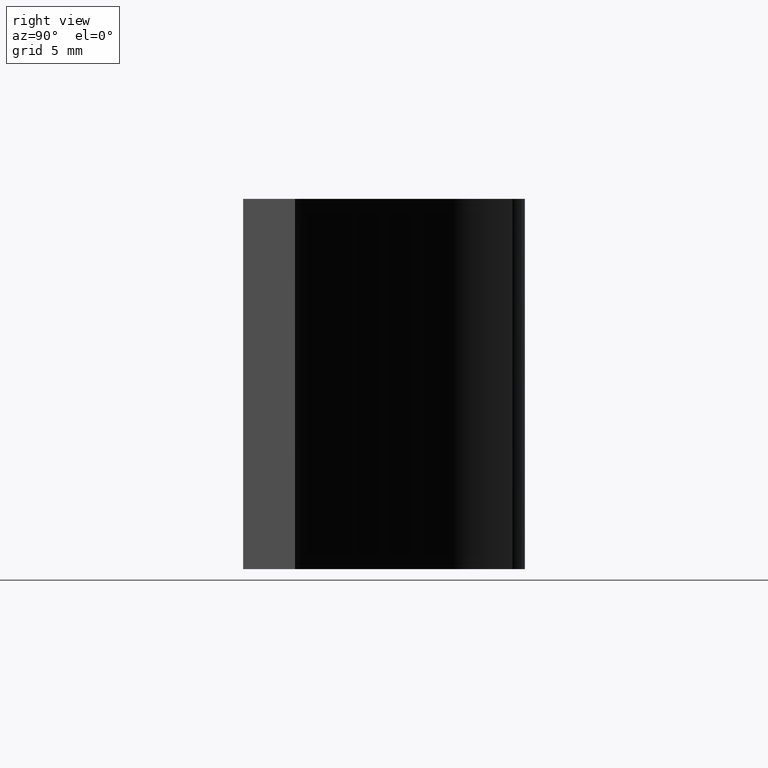
[diagram: clean part render]
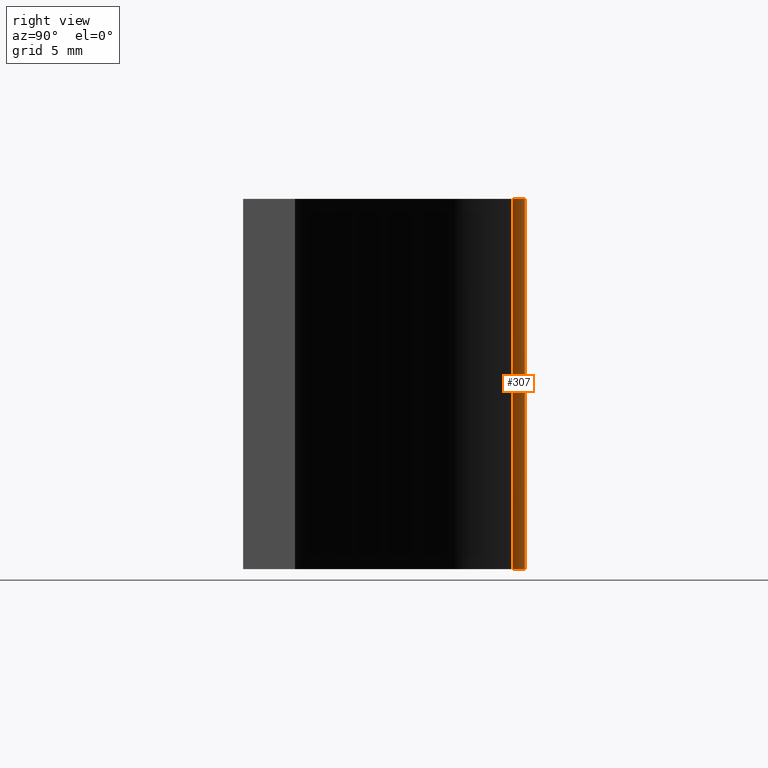
[diagram: same view with one face highlighted and labeled with its STEP entity id]
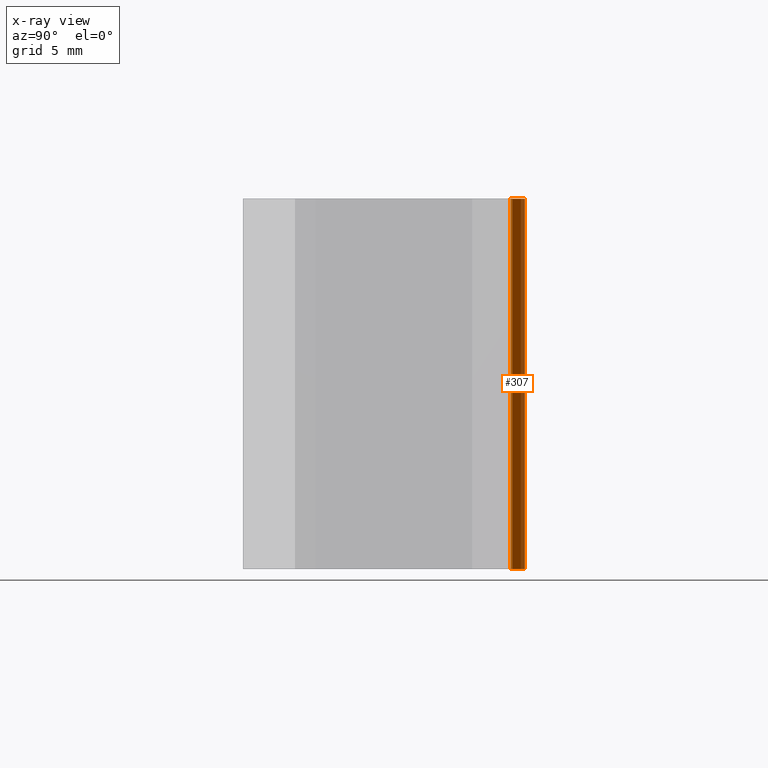
[diagram: x-ray of the same camera — body ghosted, the highlighted face saturated]
A machine part, right view. The second image highlights one B-rep face of the part: STEP entity #307.
The next image is the same camera in x-ray: the body ghosted, the highlighted face saturated — about 14% of this face is hidden behind the body in this view.
In plain terms, the highlighted cylindrical surface (partial cylindrical patch) has radius 5 mm, axis along (0, 0, 1).
Its self-contained STEP definition (entity closure, byte-faithful):
#15=CYLINDRICAL_SURFACE('',#350,5.);
#30=FACE_OUTER_BOUND('',#46,.T.);
#46=EDGE_LOOP('',(#253,#254,#255,#256));
#52=CIRCLE('',#337,5.);
#55=CIRCLE('',#351,5.);
#87=LINE('',#510,#123);
#88=LINE('',#514,#124);
#123=VECTOR('',#419,10.);
#124=VECTOR('',#424,10.);
#141=VERTEX_POINT('',#464);
#142=VERTEX_POINT('',#466);
#153=VERTEX_POINT('',#508);
#154=VERTEX_POINT('',#512);
#169=EDGE_CURVE('',#142,#141,#52,.T.);
#191=EDGE_CURVE('',#153,#141,#87,.T.);
#192=EDGE_CURVE('',#153,#154,#55,.T.);
#193=EDGE_CURVE('',#154,#142,#88,.T.);
#253=ORIENTED_EDGE('',*,*,#192,.T.);
#254=ORIENTED_EDGE('',*,*,#193,.T.);
#255=ORIENTED_EDGE('',*,*,#169,.T.);
#256=ORIENTED_EDGE('',*,*,#191,.F.);
#307=ADVANCED_FACE('',(#30),#15,.T.);
#337=AXIS2_PLACEMENT_3D('',#467,#374,#375);
#350=AXIS2_PLACEMENT_3D('',#511,#420,#421);
#351=AXIS2_PLACEMENT_3D('',#513,#422,#423);
#374=DIRECTION('center_axis',(0.,0.,1.));
#375=DIRECTION('ref_axis',(-0.562151423304266,-0.827034326540917,0.));
#419=DIRECTION('',(0.,0.,-1.));
#420=DIRECTION('center_axis',(0.,0.,1.));
#421=DIRECTION('ref_axis',(-0.562151423304266,-0.827034326540917,0.));
#422=DIRECTION('center_axis',(0.,0.,-1.));
#423=DIRECTION('ref_axis',(-0.562151423304266,-0.827034326540917,0.));
#424=DIRECTION('',(0.,0.,-1.));
#464=CARTESIAN_POINT('',(-2.98296810637382,17.0627174428754,-12.5));
#466=CARTESIAN_POINT('',(2.81075711652133,17.1851716327046,-12.5));
#467=CARTESIAN_POINT('Origin',(0.,13.05,-12.5));
#508=CARTESIAN_POINT('',(-2.98296810637382,17.0627174428754,12.5));
#510=CARTESIAN_POINT('',(-2.98296810637382,17.0627174428754,0.));
#511=CARTESIAN_POINT('Origin',(0.,13.05,0.));
#512=CARTESIAN_POINT('',(2.81075711652133,17.1851716327046,12.5));
#513=CARTESIAN_POINT('Origin',(0.,13.05,12.5));
#514=CARTESIAN_POINT('',(2.81075711652133,17.1851716327046,0.));